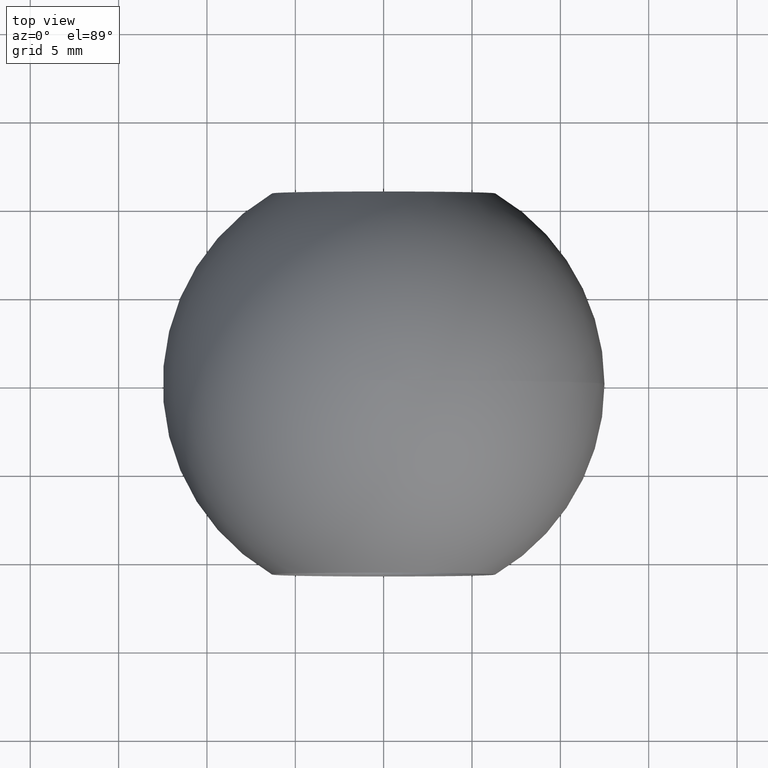
[diagram: clean part render]
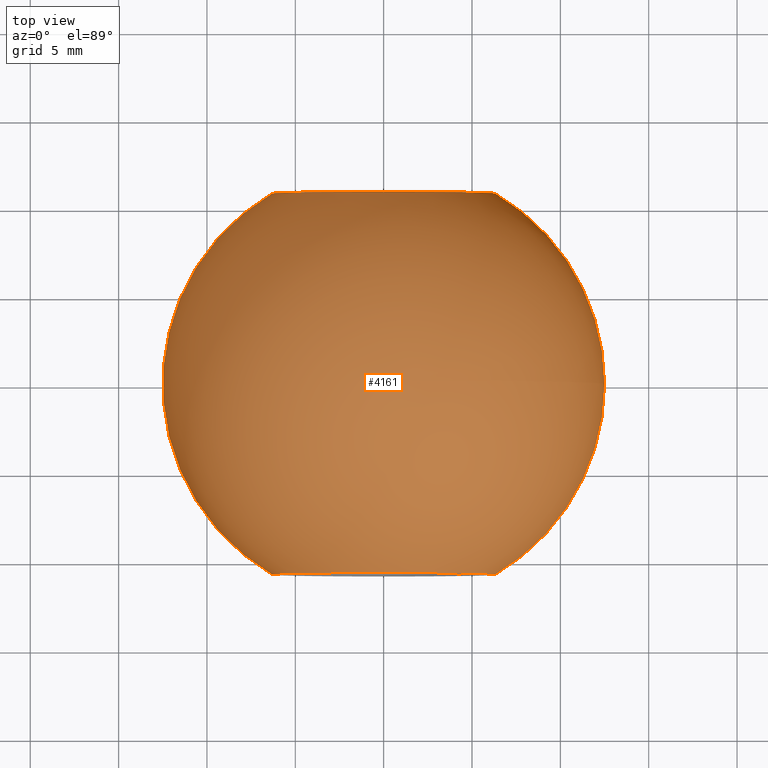
[diagram: same view with one face highlighted and labeled with its STEP entity id]
A machine part, top view. The second image highlights one B-rep face of the part: STEP entity #4161.
In plain terms, the highlighted spherical surface has radius 12.5 mm.
Its self-contained STEP definition (entity closure, byte-faithful):
#143 = VERTEX_POINT ( 'NONE', #9167 ) ;
#156 = ORIENTED_EDGE ( 'NONE', *, *, #194, .T. ) ;
#194 = EDGE_CURVE ( 'NONE', #8021, #11110, #1923, .T. ) ;
#254 = DIRECTION ( 'NONE',  ( -0.0000000000000000000, -1.000000000000000000, -0.0000000000000000000 ) ) ;
#658 = CARTESIAN_POINT ( 'NONE',  ( 6.315739571926160400, 10.78709570086434200, 0.0000000000000000000 ) ) ;
#763 = CARTESIAN_POINT ( 'NONE',  ( 0.0000000000000000000, 0.0000000000000000000, 0.0000000000000000000 ) ) ;
#1071 = CIRCLE ( 'NONE', #3309, 6.315739571926160400 ) ;
#1093 = DIRECTION ( 'NONE',  ( 0.0000000000000000000, 0.0000000000000000000, -1.000000000000000000 ) ) ;
#1212 = DIRECTION ( 'NONE',  ( 0.0000000000000000000, 0.0000000000000000000, 1.000000000000000000 ) ) ;
#1299 = VERTEX_POINT ( 'NONE', #1466 ) ;
#1466 = CARTESIAN_POINT ( 'NONE',  ( -6.315739571926164900, -10.78709570086434200, -7.734550251007653000E-016 ) ) ;
#1578 = DIRECTION ( 'NONE',  ( 1.000000000000000000, 0.0000000000000000000, 0.0000000000000000000 ) ) ;
#1638 = VERTEX_POINT ( 'NONE', #8249 ) ;
#1776 = AXIS2_PLACEMENT_3D ( 'NONE', #7484, #2038, #2954 ) ;
#1882 = VERTEX_POINT ( 'NONE', #11335 ) ;
#1923 = CIRCLE ( 'NONE', #9137, 12.50000000000000000 ) ;
#2038 = DIRECTION ( 'NONE',  ( -0.0000000000000000000, -1.000000000000000000, -0.0000000000000000000 ) ) ;
#2211 = DIRECTION ( 'NONE',  ( 0.0000000000000000000, 1.000000000000000000, 0.0000000000000000000 ) ) ;
#2311 = DIRECTION ( 'NONE',  ( 0.0000000000000000000, 0.0000000000000000000, 1.000000000000000000 ) ) ;
#2335 = DIRECTION ( 'NONE',  ( 0.0000000000000000000, 0.0000000000000000000, 1.000000000000000000 ) ) ;
#2732 = EDGE_CURVE ( 'NONE', #11110, #143, #6252, .T. ) ;
#2954 = DIRECTION ( 'NONE',  ( 0.0000000000000000000, 0.0000000000000000000, -1.000000000000000000 ) ) ;
#3118 = EDGE_LOOP ( 'NONE', ( #10619, #7732, #6037, #156, #3949, #4183 ) ) ;
#3309 = AXIS2_PLACEMENT_3D ( 'NONE', #7573, #254, #1093 ) ;
#3949 = ORIENTED_EDGE ( 'NONE', *, *, #2732, .T. ) ;
#4109 = CARTESIAN_POINT ( 'NONE',  ( 0.0000000000000000000, -10.78709570086434200, 0.0000000000000000000 ) ) ;
#4161 = ADVANCED_FACE ( 'NONE', ( #5380 ), #6225, .T. ) ;
#4183 = ORIENTED_EDGE ( 'NONE', *, *, #5724, .T. ) ;
#4533 = AXIS2_PLACEMENT_3D ( 'NONE', #4790, #9381, #9261 ) ;
#4690 = AXIS2_PLACEMENT_3D ( 'NONE', #763, #7029, #1578 ) ;
#4790 = CARTESIAN_POINT ( 'NONE',  ( 0.0000000000000000000, 0.0000000000000000000, 0.0000000000000000000 ) ) ;
#5081 = DIRECTION ( 'NONE',  ( 0.0000000000000000000, 1.000000000000000000, 0.0000000000000000000 ) ) ;
#5380 = FACE_OUTER_BOUND ( 'NONE', #3118, .T. ) ;
#5724 = EDGE_CURVE ( 'NONE', #143, #1882, #1071, .T. ) ;
#5977 = CIRCLE ( 'NONE', #4533, 12.50000000000000000 ) ;
#6037 = ORIENTED_EDGE ( 'NONE', *, *, #9666, .T. ) ;
#6225 = SPHERICAL_SURFACE ( 'NONE', #4690, 12.50000000000000000 ) ;
#6252 = CIRCLE ( 'NONE', #1776, 6.315739571926160400 ) ;
#7029 = DIRECTION ( 'NONE',  ( 0.0000000000000000000, 0.0000000000000000000, -1.000000000000000000 ) ) ;
#7467 = EDGE_CURVE ( 'NONE', #1299, #1882, #5977, .T. ) ;
#7484 = CARTESIAN_POINT ( 'NONE',  ( 0.0000000000000000000, 10.78709570086434200, 0.0000000000000000000 ) ) ;
#7570 = DIRECTION ( 'NONE',  ( 1.000000000000000000, 0.0000000000000000000, 0.0000000000000000000 ) ) ;
#7573 = CARTESIAN_POINT ( 'NONE',  ( 0.0000000000000000000, 10.78709570086434200, 0.0000000000000000000 ) ) ;
#7732 = ORIENTED_EDGE ( 'NONE', *, *, #8347, .T. ) ;
#8021 = VERTEX_POINT ( 'NONE', #10925 ) ;
#8249 = CARTESIAN_POINT ( 'NONE',  ( 2.610425223821795400E-015, -10.78709570086434200, 6.315739571926165800 ) ) ;
#8347 = EDGE_CURVE ( 'NONE', #1299, #1638, #10669, .T. ) ;
#9137 = AXIS2_PLACEMENT_3D ( 'NONE', #11104, #1212, #7570 ) ;
#9167 = CARTESIAN_POINT ( 'NONE',  ( 1.836970198721029600E-015, 10.78709570086434200, 6.315739571926161300 ) ) ;
#9261 = DIRECTION ( 'NONE',  ( -1.000000000000000000, 0.0000000000000000000, -1.224646799147353200E-016 ) ) ;
#9381 = DIRECTION ( 'NONE',  ( 1.224646799147353200E-016, 0.0000000000000000000, -1.000000000000000000 ) ) ;
#9428 = CIRCLE ( 'NONE', #11374, 6.315739571926164000 ) ;
#9666 = EDGE_CURVE ( 'NONE', #1638, #8021, #9428, .T. ) ;
#10619 = ORIENTED_EDGE ( 'NONE', *, *, #7467, .F. ) ;
#10629 = AXIS2_PLACEMENT_3D ( 'NONE', #11356, #2211, #2335 ) ;
#10669 = CIRCLE ( 'NONE', #10629, 6.315739571926164000 ) ;
#10925 = CARTESIAN_POINT ( 'NONE',  ( 6.315739571926164900, -10.78709570086434200, 0.0000000000000000000 ) ) ;
#11104 = CARTESIAN_POINT ( 'NONE',  ( 0.0000000000000000000, 0.0000000000000000000, 0.0000000000000000000 ) ) ;
#11110 = VERTEX_POINT ( 'NONE', #658 ) ;
#11335 = CARTESIAN_POINT ( 'NONE',  ( -6.315739571926160400, 10.78709570086434200, -7.734550251007650100E-016 ) ) ;
#11356 = CARTESIAN_POINT ( 'NONE',  ( 0.0000000000000000000, -10.78709570086434200, 0.0000000000000000000 ) ) ;
#11374 = AXIS2_PLACEMENT_3D ( 'NONE', #4109, #5081, #2311 ) ;